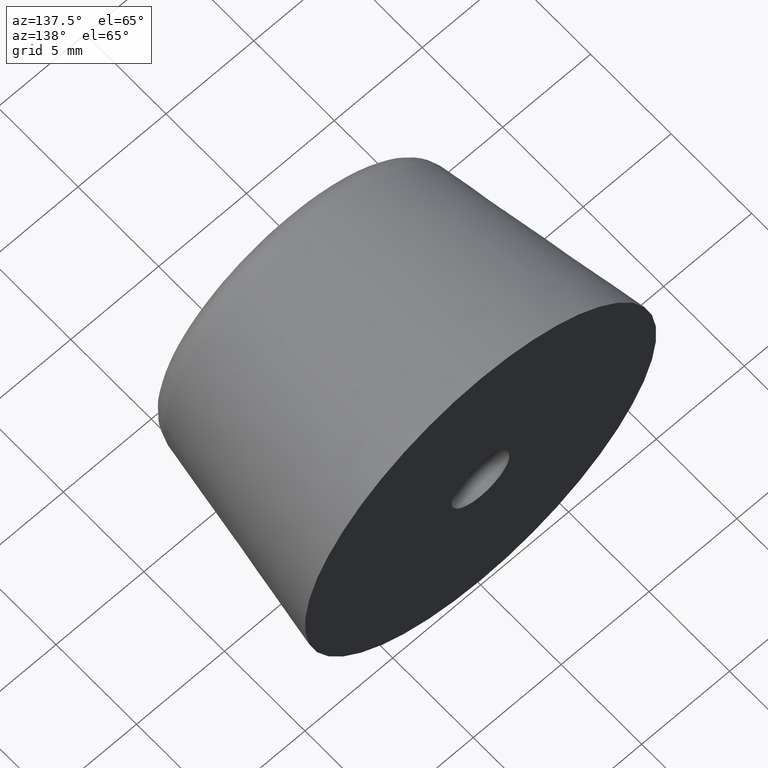
[diagram: clean part render]
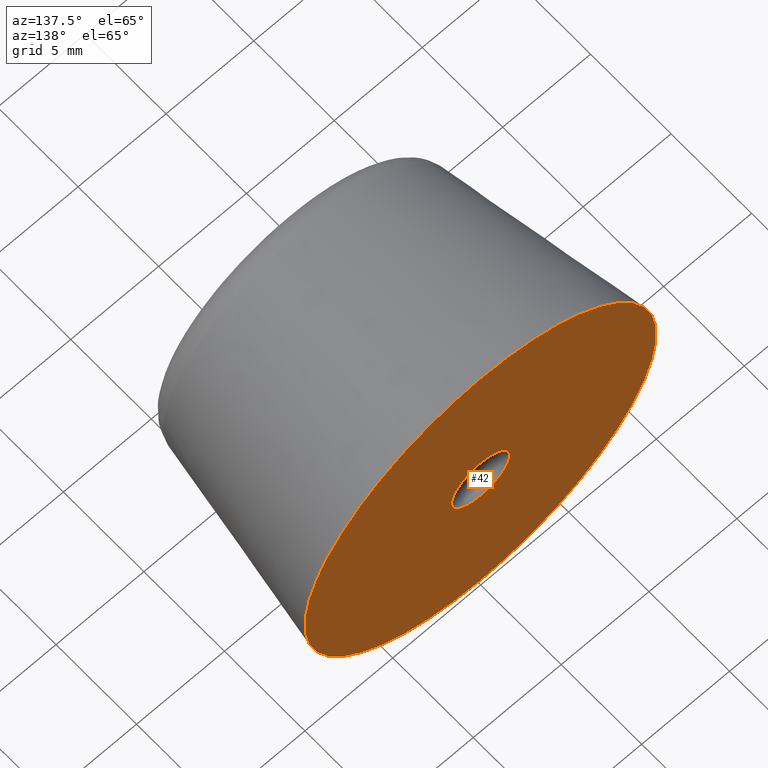
[diagram: same view with one face highlighted and labeled with its STEP entity id]
A machine part, auxiliary view. The second image highlights one B-rep face of the part: STEP entity #42.
In plain terms, the highlighted planar face has unit normal (0, -1, -0).
Its self-contained STEP definition (entity closure, byte-faithful):
#42=ADVANCED_FACE('',(#74,#75),#73,.F.);
#73=PLANE('',#179);
#74=FACE_OUTER_BOUND('',#180,.T.);
#75=FACE_BOUND('',#181,.T.);
#176=CARTESIAN_POINT('',(-2.07846096908E+01,0.00000000000E+00,2.30000000000E+01));
#177=DIRECTION('',(0.00000000000E+00,-1.00000000000E+00,-0.00000000000E+00));
#178=DIRECTION('',(0.00000000000E+00,0.00000000000E+00,-1.00000000000E+00));
#179=AXIS2_PLACEMENT_3D('',#176,#177,#178);
#180=EDGE_LOOP('',(#284,#285));
#181=EDGE_LOOP('',(#286,#287));
#284=ORIENTED_EDGE('',*,*,#328,.F.);
#285=ORIENTED_EDGE('',*,*,#329,.F.);
#286=ORIENTED_EDGE('',*,*,#330,.T.);
#287=ORIENTED_EDGE('',*,*,#331,.T.);
#328=EDGE_CURVE('',#398,#399,#400,.T.);
#329=EDGE_CURVE('',#399,#398,#406,.T.);
#330=EDGE_CURVE('',#412,#413,#414,.T.);
#331=EDGE_CURVE('',#413,#412,#420,.T.);
#398=VERTEX_POINT('',#528);
#399=VERTEX_POINT('',#529);
#400=CIRCLE('',#533,1.00000000000E+01);
#406=CIRCLE('',#537,1.00000000000E+01);
#412=VERTEX_POINT('',#538);
#413=VERTEX_POINT('',#539);
#414=CIRCLE('',#543,1.65000000000E+00);
#420=CIRCLE('',#547,1.65000000000E+00);
#528=CARTESIAN_POINT('',(-1.00660220899E-14,0.00000000000E+00,1.00000000000E+01));
#529=CARTESIAN_POINT('',(-1.06581410364E-14,0.00000000000E+00,-1.00000000000E+01));
#530=CARTESIAN_POINT('',(-1.06581410364E-14,0.00000000000E+00,0.00000000000E+00));
#531=DIRECTION('',(0.00000000000E+00,-1.00000000000E+00,-0.00000000000E+00));
#532=DIRECTION('',(-1.22460635382E-16,0.00000000000E+00,-1.00000000000E+00));
#533=AXIS2_PLACEMENT_3D('',#530,#531,#532);
#534=CARTESIAN_POINT('',(-1.06581410364E-14,0.00000000000E+00,0.00000000000E+00));
#535=DIRECTION('',(0.00000000000E+00,-1.00000000000E+00,-0.00000000000E+00));
#536=DIRECTION('',(-1.22460635382E-16,0.00000000000E+00,-1.00000000000E+00));
#537=AXIS2_PLACEMENT_3D('',#534,#535,#536);
#538=CARTESIAN_POINT('',(-1.06581410364E-14,0.00000000000E+00,-1.65000000000E+00));
#539=CARTESIAN_POINT('',(-1.06581410364E-14,0.00000000000E+00,1.65000000000E+00));
#540=CARTESIAN_POINT('',(-1.06581410364E-14,0.00000000000E+00,0.00000000000E+00));
#541=DIRECTION('',(0.00000000000E+00,-1.00000000000E+00,-0.00000000000E+00));
#542=DIRECTION('',(-1.22460635382E-16,0.00000000000E+00,-1.00000000000E+00));
#543=AXIS2_PLACEMENT_3D('',#540,#541,#542);
#544=CARTESIAN_POINT('',(-1.06581410364E-14,0.00000000000E+00,0.00000000000E+00));
#545=DIRECTION('',(0.00000000000E+00,-1.00000000000E+00,-0.00000000000E+00));
#546=DIRECTION('',(-1.22460635382E-16,0.00000000000E+00,-1.00000000000E+00));
#547=AXIS2_PLACEMENT_3D('',#544,#545,#546);